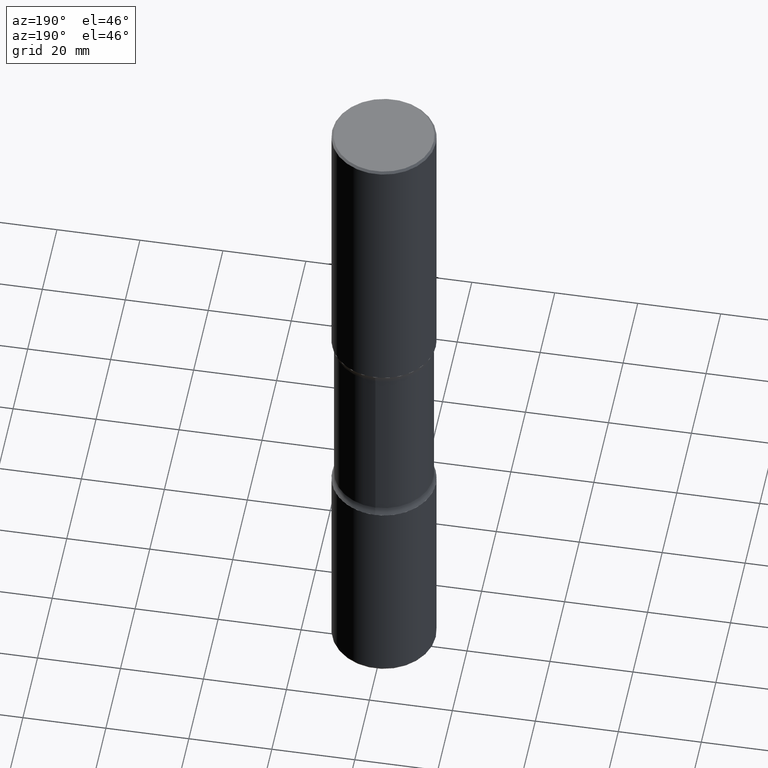
[diagram: clean part render]
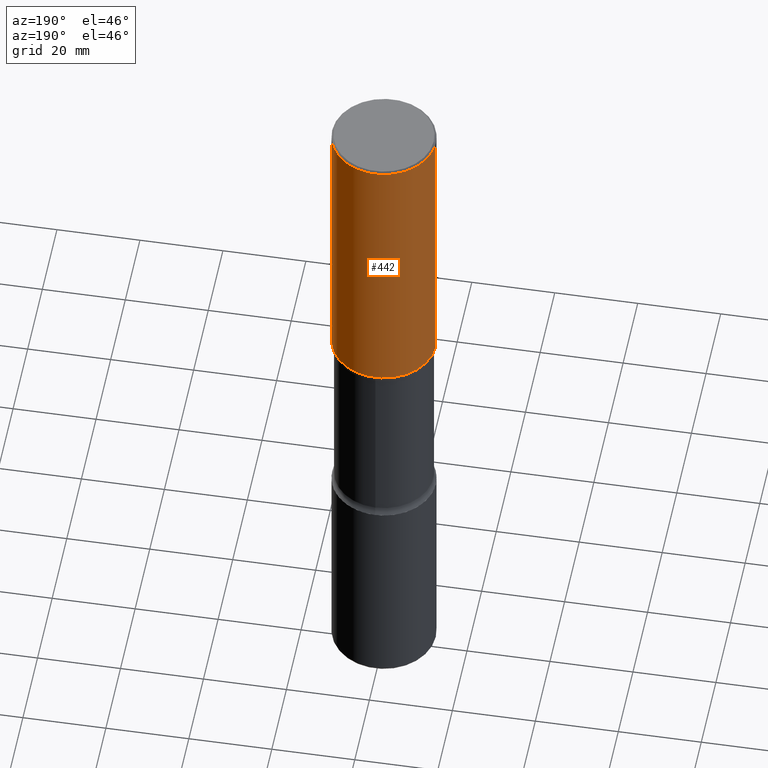
[diagram: same view with one face highlighted and labeled with its STEP entity id]
A machine part, auxiliary view. The second image highlights one B-rep face of the part: STEP entity #442.
In plain terms, the highlighted cylindrical surface (partial cylindrical patch) has radius 12.5006 mm, axis along (-0, 0, 1).
Its self-contained STEP definition (entity closure, byte-faithful):
#21 = CARTESIAN_POINT ( 'NONE',  ( -0.4921499999999999209, 3.366835455046432084E-15, -0.02000000000000006981 ) ) ;
#27 = ORIENTED_EDGE ( 'NONE', *, *, #231, .F. ) ;
#50 = CARTESIAN_POINT ( 'NONE',  ( 0.4921500000000002539, -1.305883850354111701E-14, -2.755899999999998240 ) ) ;
#56 = CIRCLE ( 'NONE', #435, 0.4921500000000002539 ) ;
#65 = CARTESIAN_POINT ( 'NONE',  ( 0.4921500000000000874, -3.436665081823296565E-15, 2.399810400207970163E-29 ) ) ;
#70 = AXIS2_PLACEMENT_3D ( 'NONE', #400, #320, #493 ) ;
#82 = CIRCLE ( 'NONE', #393, 0.4921499999999999209 ) ;
#90 = DIRECTION ( 'NONE',  ( 1.000000000000000000, -6.982962677686265922E-15, 0.000000000000000000 ) ) ;
#94 = CARTESIAN_POINT ( 'NONE',  ( -0.4921500000000000874, 3.496936074043333686E-15, -2.420853904668952350E-29 ) ) ;
#126 = VERTEX_POINT ( 'NONE', #158 ) ;
#127 = DIRECTION ( 'NONE',  ( -2.445468806185136877E-29, 3.491481338843145188E-15, 1.000000000000000000 ) ) ;
#150 = CYLINDRICAL_SURFACE ( 'NONE', #70, 0.4921500000000000874 ) ;
#158 = CARTESIAN_POINT ( 'NONE',  ( -0.4921500000000002539, -1.349065450204005425E-15, -2.755899999999998240 ) ) ;
#172 = EDGE_CURVE ( 'NONE', #126, #376, #431, .T. ) ;
#204 = VERTEX_POINT ( 'NONE', #50 ) ;
#231 = EDGE_CURVE ( 'NONE', #290, #376, #82, .T. ) ;
#266 = VECTOR ( 'NONE', #127, 39.37007874015748143 ) ;
#269 = DIRECTION ( 'NONE',  ( -2.445468806185136597E-29, 3.491481338843145583E-15, 1.000000000000000000 ) ) ;
#290 = VERTEX_POINT ( 'NONE', #304 ) ;
#302 = DIRECTION ( 'NONE',  ( -2.445468806185136877E-29, 3.491481338843145188E-15, 1.000000000000000000 ) ) ;
#304 = CARTESIAN_POINT ( 'NONE',  ( 0.4921499999999999209, -3.446223716380121955E-15, -0.02000000000000006981 ) ) ;
#320 = DIRECTION ( 'NONE',  ( -2.445468806185136597E-29, 3.491481338843145583E-15, 1.000000000000000000 ) ) ;
#339 = CARTESIAN_POINT ( 'NONE',  ( 4.890937612370289799E-31, -6.982962677686315028E-17, -0.02000000000000006981 ) ) ;
#367 = EDGE_CURVE ( 'NONE', #204, #126, #56, .T. ) ;
#372 = ORIENTED_EDGE ( 'NONE', *, *, #514, .F. ) ;
#376 = VERTEX_POINT ( 'NONE', #21 ) ;
#377 = LINE ( 'NONE', #65, #266 ) ;
#393 = AXIS2_PLACEMENT_3D ( 'NONE', #339, #269, #90 ) ;
#396 = FACE_OUTER_BOUND ( 'NONE', #540, .T. ) ;
#397 = VECTOR ( 'NONE', #302, 39.37007874015748143 ) ;
#398 = DIRECTION ( 'NONE',  ( 1.000000000000000000, -6.982962677686266711E-15, 0.000000000000000000 ) ) ;
#400 = CARTESIAN_POINT ( 'NONE',  ( 0.000000000000000000, 0.000000000000000000, 0.000000000000000000 ) ) ;
#405 = ORIENTED_EDGE ( 'NONE', *, *, #367, .T. ) ;
#431 = LINE ( 'NONE', #94, #397 ) ;
#435 = AXIS2_PLACEMENT_3D ( 'NONE', #486, #537, #398 ) ;
#442 = ADVANCED_FACE ( 'NONE', ( #396 ), #150, .T. ) ;
#447 = ORIENTED_EDGE ( 'NONE', *, *, #172, .T. ) ;
#486 = CARTESIAN_POINT ( 'NONE',  ( 6.739467482965614869E-29, -9.622173421717819657E-15, -2.755899999999998240 ) ) ;
#493 = DIRECTION ( 'NONE',  ( 1.000000000000000000, -6.982962677686265922E-15, 4.876176775795935793E-29 ) ) ;
#514 = EDGE_CURVE ( 'NONE', #204, #290, #377, .T. ) ;
#537 = DIRECTION ( 'NONE',  ( -2.445468806185136597E-29, 3.491481338843145583E-15, 1.000000000000000000 ) ) ;
#540 = EDGE_LOOP ( 'NONE', ( #405, #447, #27, #372 ) ) ;